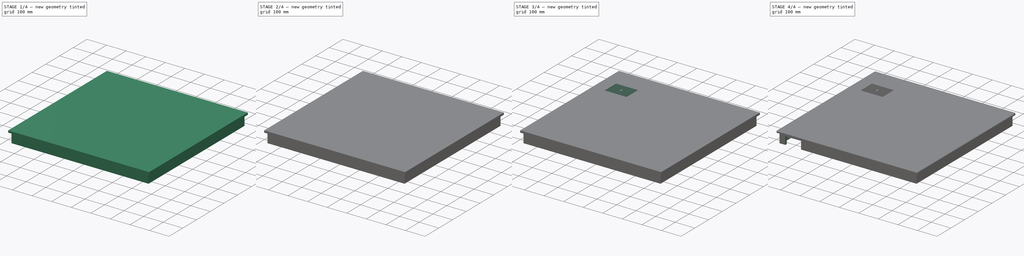
[diagram: build sequence overview — one tinted view per stage of 4, left to right]
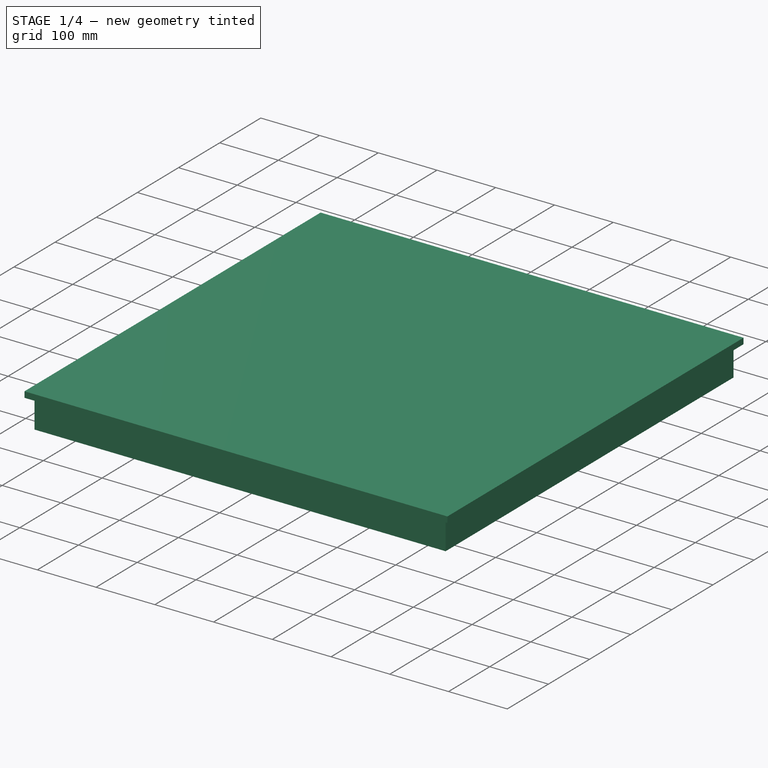
[diagram: stage 1 of 4 — iso view after this stage's code; geometry added in this stage tinted green]
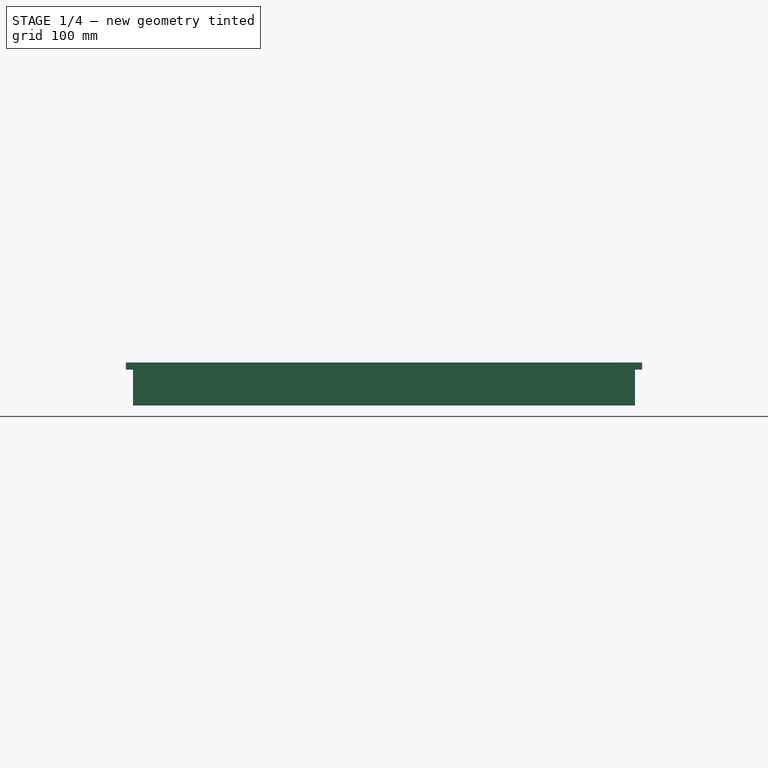
[diagram: stage 1 of 4 — front view after this stage's code; geometry added in this stage tinted green]
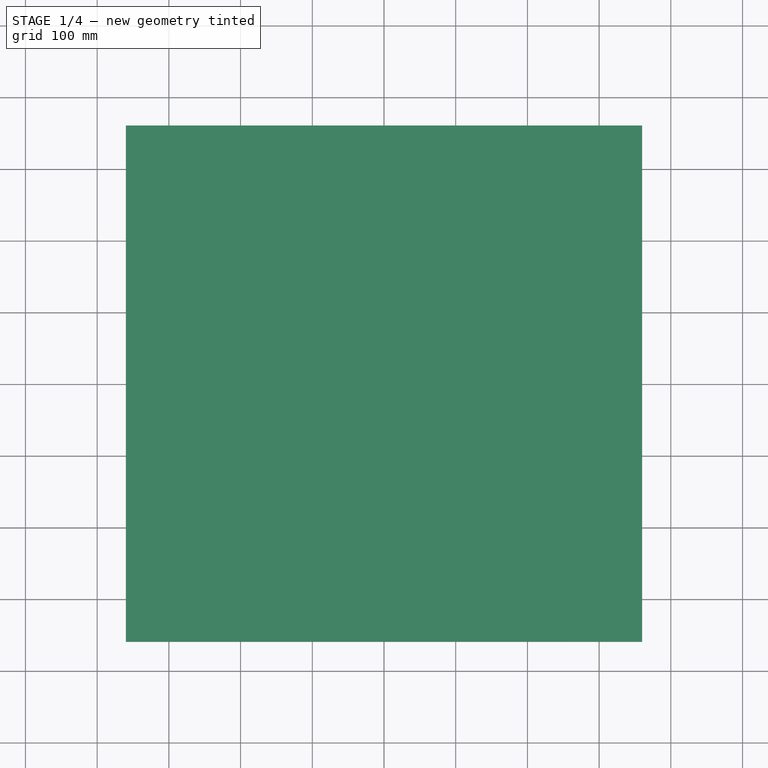
[diagram: stage 1 of 4 — top view after this stage's code; geometry added in this stage tinted green]
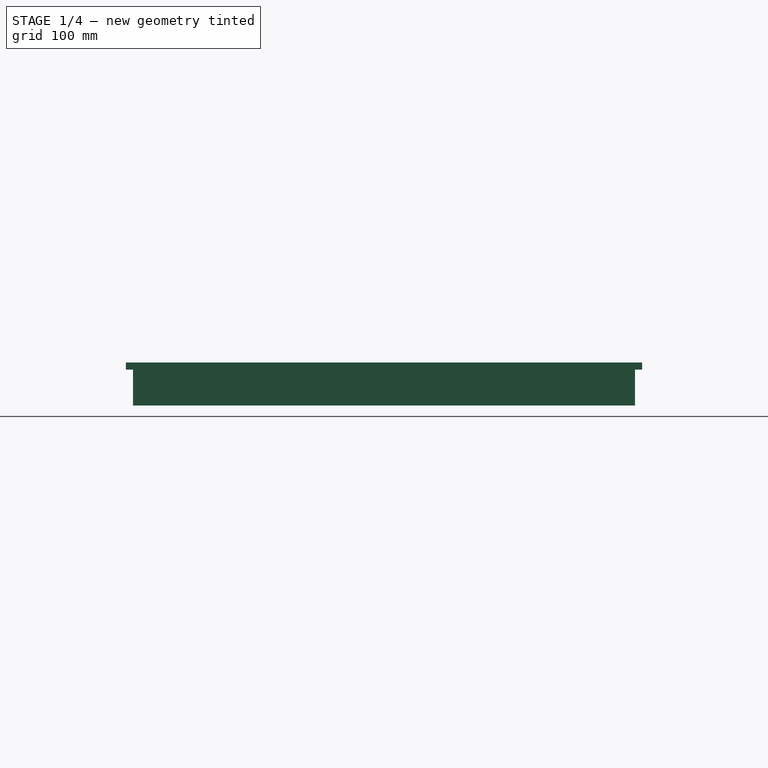
[diagram: stage 1 of 4 — right view after this stage's code; geometry added in this stage tinted green]
FCSTD DOCUMENT  (FreeCAD 0.18R16131 (Git))
Label: Couvercle_tete
License: All rights reserved
LicenseURL: http://en.wikipedia.org/wiki/All_rights_reserved
objects: Sketcher::SketchObject×10, PartDesign::Pad×6, PartDesign::Pocket×4, PartDesign::Fillet×4, PartDesign::Body×1
note: 35 computed .brp shape members not serialized (recipe doc carries the construction recipe); baked Part::Feature solids carry a one-line shape summary decoded from their .brp

FEATURE [Sketcher::SketchObject] Sketch
  MapMode = 5
  Support = -> [XY_Plane]
  sketch-geometry (4):
    g0: LineSegment StartX=-360 StartY=360 StartZ=0 EndX=360 EndY=360 EndZ=0
    g1: LineSegment StartX=360 StartY=360 StartZ=0 EndX=360 EndY=-360 EndZ=0
    g2: LineSegment StartX=360 StartY=-360 StartZ=0 EndX=-360 EndY=-360 EndZ=0
    g3: LineSegment StartX=-360 StartY=-360 StartZ=0 EndX=-360 EndY=360 EndZ=0
  constraints (10):
    c: Coincident(g0,g1)
    c: Coincident(g1,g2)
    c: Coincident(g2,g3)
    c: Coincident(g3,g0)
    c: Horizontal(g0)
    c: Horizontal(g2)
    c: Vertical(g1)
    c: Vertical(g3)
    c: DistanceX(g0,g0) = 720
    c: DistanceY(g1,g1) = 720
FEATURE [PartDesign::Pad] Pad
  Length = 10
  Length2 = 100
  Profile = -> Sketch
  Type = 0
FEATURE [Sketcher::SketchObject] Sketch001
  ExternalGeometry = -> [Pad]
  MapMode = 5
  Placement = pos=(0,0,0) rot=(1,0,0;3.14159rad)
  Support = -> [Pad]
  sketch-geometry (8):
    g0: LineSegment StartX=-350 StartY=350 StartZ=0 EndX=350 EndY=350 EndZ=0
    g1: LineSegment StartX=350 StartY=350 StartZ=0 EndX=350 EndY=-350 EndZ=0
    g2: LineSegment StartX=350 StartY=-350 StartZ=0 EndX=-350 EndY=-350 EndZ=0
    g3: LineSegment StartX=-350 StartY=-350 StartZ=0 EndX=-350 EndY=350 EndZ=0
    g4: LineSegment StartX=-340 StartY=340 StartZ=0 EndX=340 EndY=340 EndZ=0
    g5: LineSegment StartX=340 StartY=340 StartZ=0 EndX=340 EndY=-340 EndZ=0
    g6: LineSegment StartX=340 StartY=-340 StartZ=0 EndX=-340 EndY=-340 EndZ=0
    g7: LineSegment StartX=-340 StartY=-340 StartZ=0 EndX=-340 EndY=340 EndZ=0
  constraints (24):
    c: Coincident(g0,g1)
    c: Coincident(g1,g2)
    c: Coincident(g2,g3)
    c: Coincident(g3,g0)
    c: Horizontal(g0)
    c: Horizontal(g2)
    c: Vertical(g1)
    c: Vertical(g3)
    c: Coincident(g4,g5)
    c: Coincident(g5,g6)
    c: Coincident(g6,g7)
    c: Coincident(g7,g4)
    c: Horizontal(g4)
    c: Horizontal(g6)
    c: Vertical(g5)
    c: Vertical(g7)
    c: DistanceX(g1,g-6) = 10
    c: DistanceY(g-6,g1) = 10
    c: DistanceY(g0,g-4) = 10
    c: DistanceX(g-4,g0) = 10
    c: DistanceY(g4,g0) = 10
    c: DistanceX(g4,g0) = 10
    c: DistanceX(g2,g6) = 10
    c: DistanceY(g2,g6) = 10
FEATURE [PartDesign::Pad] Pad001
  BaseFeature = -> Pad
  Length = 50
  Length2 = 100
  Profile = -> Sketch001
  Type = 0
FEATURE [Sketcher::SketchObject] Sketch002
  ExternalGeometry = -> [Pad001]
  MapMode = 5
  Placement = pos=(0,0,0) rot=(1,0,0;3.14159rad)
  Support = -> [Pad001]
  sketch-geometry (16):
    g0: LineSegment StartX=259 StartY=-265 StartZ=0 EndX=305 EndY=-265 EndZ=0
    g1: LineSegment StartX=305 StartY=-265 StartZ=0 EndX=305 EndY=-305 EndZ=0
    g2: LineSegment StartX=305 StartY=-305 StartZ=0 EndX=259 EndY=-305 EndZ=0
    g3: LineSegment StartX=259 StartY=-305 StartZ=0 EndX=259 EndY=-265 EndZ=0
    g4: LineSegment StartX=208 StartY=-265 StartZ=0 EndX=254 EndY=-265 EndZ=0
    g5: LineSegment StartX=254 StartY=-265 StartZ=0 EndX=254 EndY=-305 EndZ=0
    g6: LineSegment StartX=254 StartY=-305 StartZ=0 EndX=208 EndY=-305 EndZ=0
    g7: LineSegment StartX=208 StartY=-305 StartZ=0 EndX=208 EndY=-265 EndZ=0
    g8: LineSegment StartX=259 StartY=16 StartZ=0 EndX=305 EndY=16 EndZ=0
    g9: LineSegment StartX=305 StartY=16 StartZ=0 EndX=305 EndY=-184 EndZ=0
    g10: LineSegment StartX=305 StartY=-184 StartZ=0 EndX=259 EndY=-184 EndZ=0
    g11: LineSegment StartX=259 StartY=-184 StartZ=0 EndX=259 EndY=16 EndZ=0
    g12: LineSegment StartX=208 StartY=16 StartZ=0 EndX=254 EndY=16 EndZ=0
    g13: LineSegment StartX=254 StartY=16 StartZ=0 EndX=254 EndY=-184 EndZ=0
    g14: LineSegment StartX=254 StartY=-184 StartZ=0 EndX=208 EndY=-184 EndZ=0
    g15: LineSegment StartX=208 StartY=-184 StartZ=0 EndX=208 EndY=16 EndZ=0
  constraints (48):
    c: Coincident(g0,g1)
    c: Coincident(g1,g2)
    c: Coincident(g2,g3)
    c: Coincident(g3,g0)
    c: Horizontal(g0)
    c: Horizontal(g2)
    c: Vertical(g1)
    c: Vertical(g3)
    c: Coincident(g4,g5)
    c: Coincident(g5,g6)
    c: Coincident(g6,g7)
    c: Coincident(g7,g4)
    c: Horizontal(g4)
    c: Horizontal(g6)
    c: Vertical(g5)
    c: Vertical(g7)
    c: Coincident(g8,g9)
    c: Coincident(g9,g10)
    c: Coincident(g10,g11)
    c: Coincident(g11,g8)
    c: Horizontal(g8)
    c: Horizontal(g10)
    c: Vertical(g9)
    c: Vertical(g11)
    c: Coincident(g12,g13)
    c: Coincident(g13,g14)
    c: Coincident(g14,g15)
    c: Coincident(g15,g12)
    c: Horizontal(g12)
    c: Horizontal(g14)
    c: Vertical(g13)
    c: Vertical(g15)
    c: DistanceX(g0,g0) = 46
    c: DistanceY(g1,g1) = 40
    c: Equal(g0,g4)
    c: Equal(g1,g5)
    c: Equal(g2,g8)
    c: Equal(g6,g12)
    c: DistanceY(g9,g9) = 200
    c: Equal(g11,g13)
    c: DistanceY(g10,g13) = 0
    c: DistanceX(g5,g2) = 5
    c: DistanceX(g12,g8) = 5
    c: DistanceY(g4,g14) = 81
    c: DistanceY(g0,g9) = 81
    c: DistanceX(g4,g13) = 0
    c: DistanceX(g1,g-5) = 45
    c: DistanceY(g-5,g1) = 45
FEATURE [PartDesign::Pad] Pad002
  BaseFeature = -> Pad001
  Length = 10
  Length2 = 100
  Profile = -> Sketch002
  Type = 0
FEATURE [Sketcher::SketchObject] Sketch003
  ExternalGeometry = -> [Pad002]
  MapMode = 5
  Placement = pos=(0,0,0) rot=(1,0,0;3.14159rad)
  Support = -> [Pad002]
  sketch-geometry (8):
    g0: LineSegment StartX=208 StartY=-194 StartZ=0 EndX=254 EndY=-194 EndZ=0
    g1: LineSegment StartX=254 StartY=-194 StartZ=0 EndX=254 EndY=-255 EndZ=0
    g2: LineSegment StartX=254 StartY=-255 StartZ=0 EndX=208 EndY=-255 EndZ=0
    g3: LineSegment StartX=208 StartY=-255 StartZ=0 EndX=208 EndY=-194 EndZ=0
    g4: LineSegment StartX=259 StartY=-194 StartZ=0 EndX=305 EndY=-194 EndZ=0
    g5: LineSegment StartX=305 StartY=-194 StartZ=0 EndX=305 EndY=-255 EndZ=0
    g6: LineSegment StartX=305 StartY=-255 StartZ=0 EndX=259 EndY=-255 EndZ=0
    g7: LineSegment StartX=259 StartY=-255 StartZ=0 EndX=259 EndY=-194 EndZ=0
  constraints (24):
    c: Coincident(g0,g1)
    c: Coincident(g1,g2)
    c: Coincident(g2,g3)
    c: Coincident(g3,g0)
    c: Horizontal(g0)
    c: Horizontal(g2)
    c: Vertical(g1)
    c: Vertical(g3)
    c: Coincident(g4,g5)
    c: Coincident(g5,g6)
    c: Coincident(g6,g7)
    c: Coincident(g7,g4)
    c: Horizontal(g4)
    c: Horizontal(g6)
    c: Vertical(g5)
    c: Vertical(g7)
    c: DistanceX(g4,g4) = 46
    c: DistanceX(g0,g0) = 46
    c: DistanceX(g0,g4) = 5
    c: DistanceX(g0,g-3) = 0
    c: DistanceY(g7,g7) = 61
    c: DistanceY(g1,g1) = 61
    c: DistanceY(g4,g-3) = 10
    c: DistanceY(g0,g-3) = 10
FEATURE [PartDesign::Pad] Pad003
  BaseFeature = -> Pad002
  Length = 5
  Length2 = 100
  Profile = -> Sketch003
  Type = 0
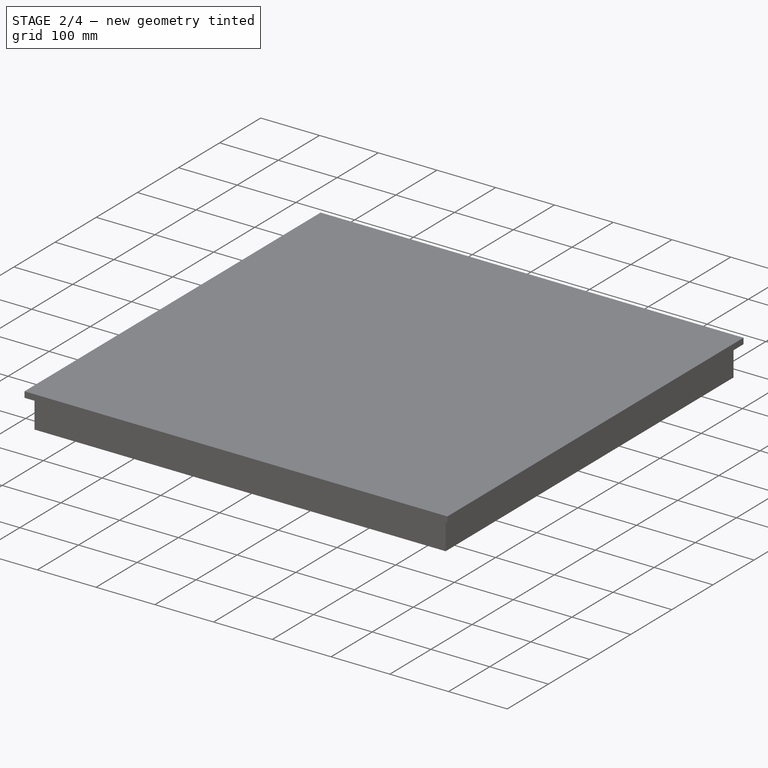
[diagram: stage 2 of 4 — iso view after this stage's code; geometry added in this stage tinted green]
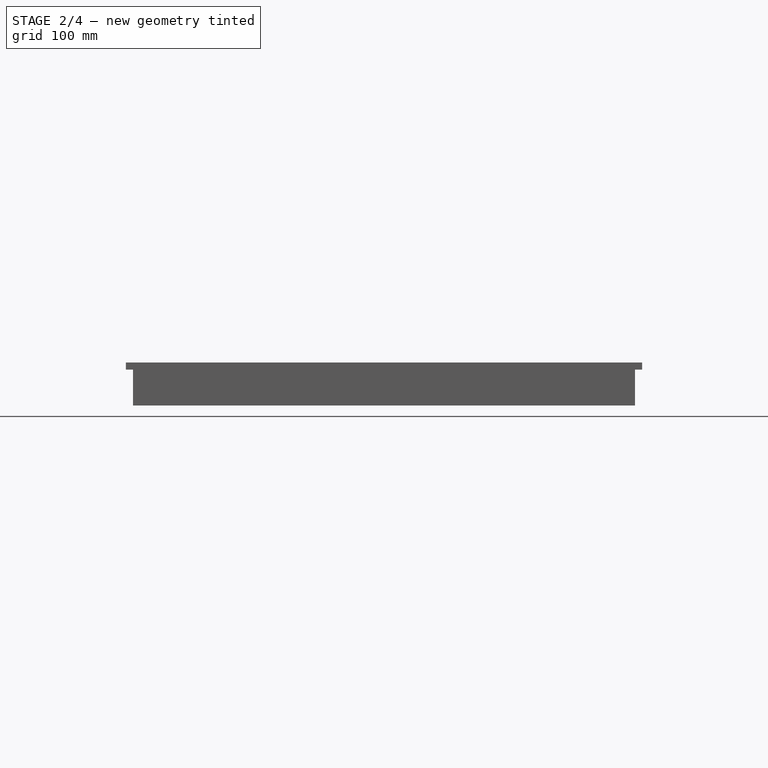
[diagram: stage 2 of 4 — front view after this stage's code; geometry added in this stage tinted green]
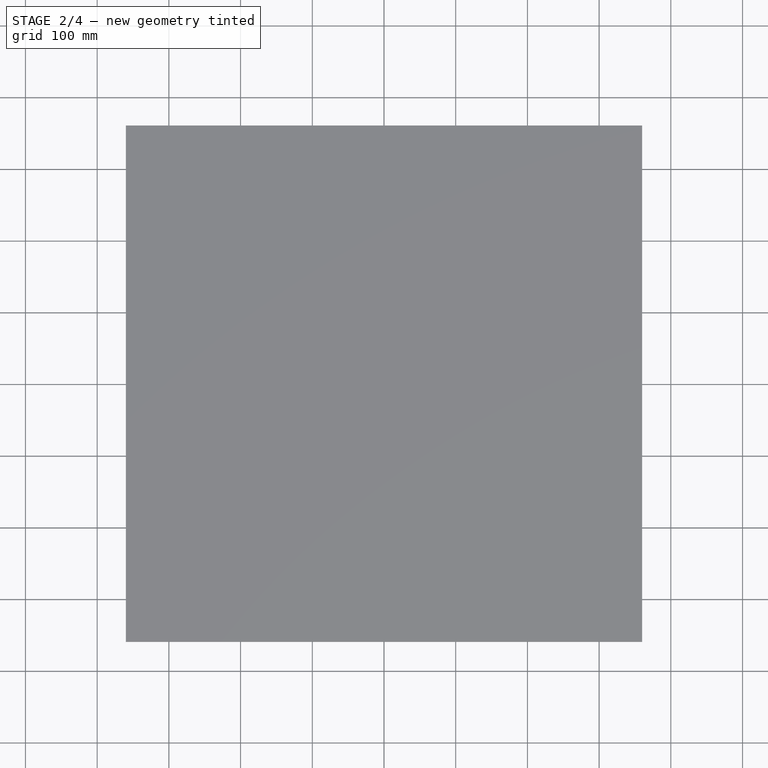
[diagram: stage 2 of 4 — top view after this stage's code; geometry added in this stage tinted green]
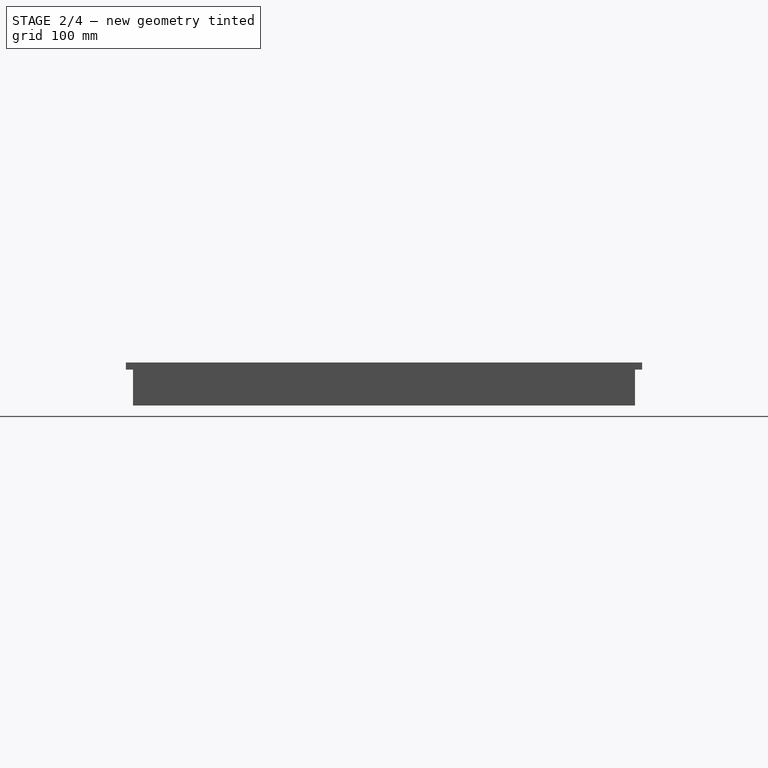
[diagram: stage 2 of 4 — right view after this stage's code; geometry added in this stage tinted green]
FEATURE [Sketcher::SketchObject] Sketch004
  ExternalGeometry = -> [Pad003]
  MapMode = 5
  Placement = pos=(0,0,0) rot=(1,0,0;3.14159rad)
  Support = -> [Pad003]
  sketch-geometry (4):
    g0: LineSegment StartX=-240 StartY=240 StartZ=0 EndX=-108 EndY=240 EndZ=0
    g1: LineSegment StartX=-108 StartY=240 StartZ=0 EndX=-108 EndY=179 EndZ=0
    g2: LineSegment StartX=-108 StartY=179 StartZ=0 EndX=-240 EndY=179 EndZ=0
    g3: LineSegment StartX=-240 StartY=179 StartZ=0 EndX=-240 EndY=240 EndZ=0
  constraints (12):
    c: Coincident(g0,g1)
    c: Coincident(g1,g2)
    c: Coincident(g2,g3)
    c: Coincident(g3,g0)
    c: Horizontal(g0)
    c: Horizontal(g2)
    c: Vertical(g1)
    c: Vertical(g3)
    c: DistanceX(g-4,g0) = 110
    c: DistanceY(g0,g-4) = 110
    c: DistanceX(g0,g0) = 132
    c: DistanceY(g1,g1) = 61
FEATURE [PartDesign::Pad] Pad004
  BaseFeature = -> Pad003
  Length = 46
  Length2 = 100
  Profile = -> Sketch004
  Type = 0
FEATURE [Sketcher::SketchObject] Sketch005
  ExternalGeometry = -> [Pad004]
  MapMode = 5
  Placement = pos=(0,-179,0) rot=(0,0.707107,0.707107;3.14159rad)
  Support = -> [Pad004]
  sketch-geometry (4):
    g0: LineSegment StartX=108 StartY=-46 StartZ=0 EndX=240 EndY=-46 EndZ=0
    g1: LineSegment StartX=240 StartY=-46 StartZ=0 EndX=179 EndY=0 EndZ=0
    g2: LineSegment StartX=179 StartY=0 StartZ=0 EndX=169 EndY=0 EndZ=0
    g3: LineSegment StartX=169 StartY=0 StartZ=0 EndX=108 EndY=-46 EndZ=0
  constraints (10):
    c: Coincident(g0,g1)
    c: Coincident(g1,g2)
    c: Coincident(g2,g3)
    c: Coincident(g3,g0)
    c: DistanceX(g1,g-6) = 61
    c: DistanceX(g-5,g2) = 61
    c: Coincident(g0,g-5)
    c: Coincident(g0,g-6)
    c: PointOnObject(g2,g-4)
    c: PointOnObject(g1,g-4)
FEATURE [PartDesign::Pocket] Pocket
  BaseFeature = -> Pad004
  Length = 61
  Length2 = 100
  Profile = -> Sketch005
  Type = 0
FEATURE [Sketcher::SketchObject] Sketch006
  ExternalGeometry = -> [Pocket]
  MapMode = 5
  Placement = pos=(0,0,0) rot=(1,0,0;3.14159rad)
  Support = -> [Pocket]
  sketch-geometry (7):
    g0: LineSegment [constr] StartX=-300 StartY=-167 StartZ=0 EndX=-183 EndY=-167 EndZ=0
    g1: LineSegment [constr] StartX=-183 StartY=-167 StartZ=0 EndX=-183 EndY=-250 EndZ=0
    g2: LineSegment [constr] StartX=-183 StartY=-250 StartZ=0 EndX=-300 EndY=-250 EndZ=0
    g3: LineSegment [constr] StartX=-300 StartY=-250 StartZ=0 EndX=-300 EndY=-167 EndZ=0
    g4: LineSegment [constr] StartX=-300 StartY=-167 StartZ=0 EndX=-183 EndY=-250 EndZ=0
    g5: LineSegment [constr] StartX=-183 StartY=-167 StartZ=0 EndX=-300 EndY=-250 EndZ=0
    g6: Circle CenterX=-241.5 CenterY=-208.5 CenterZ=0 NormalX=0 NormalY=0 NormalZ=1 AngleXU=0 Radius=2.5
  constraints (19):
    c: Coincident(g0,g1)
    c: Coincident(g1,g2)
    c: Coincident(g2,g3)
    c: Coincident(g3,g0)
    c: Horizontal(g0)
    c: Horizontal(g2)
    c: Vertical(g1)
    c: Vertical(g3)
    c: DistanceY(g-6,g2) = 100
    c: DistanceX(g-6,g2) = 50
    c: DistanceX(g0,g0) = 117
    c: DistanceY(g1,g1) = 83
    c: Coincident(g4,g0)
    c: Coincident(g5,g0)
    c: Coincident(g4,g1)
    c: Coincident(g5,g2)
    c: PointOnObject(g6,g5)
    c: PointOnObject(g6,g4)
    c: Diameter(g6) = 5
FEATURE [PartDesign::Pad] Pad005
  BaseFeature = -> Pocket
  Length = 14
  Length2 = 100
  Profile = -> Sketch006
  Type = 0
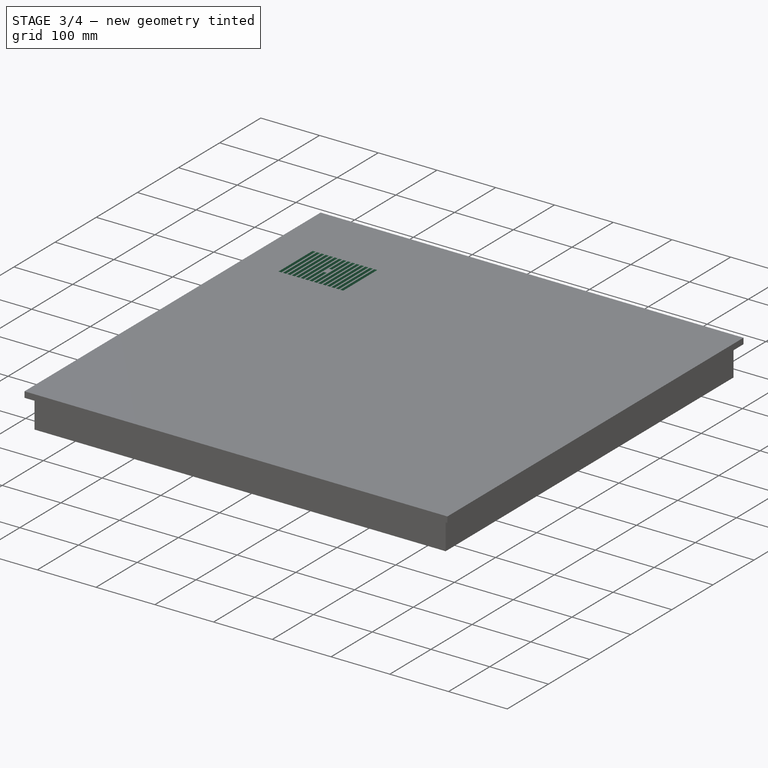
[diagram: stage 3 of 4 — iso view after this stage's code; geometry added in this stage tinted green]
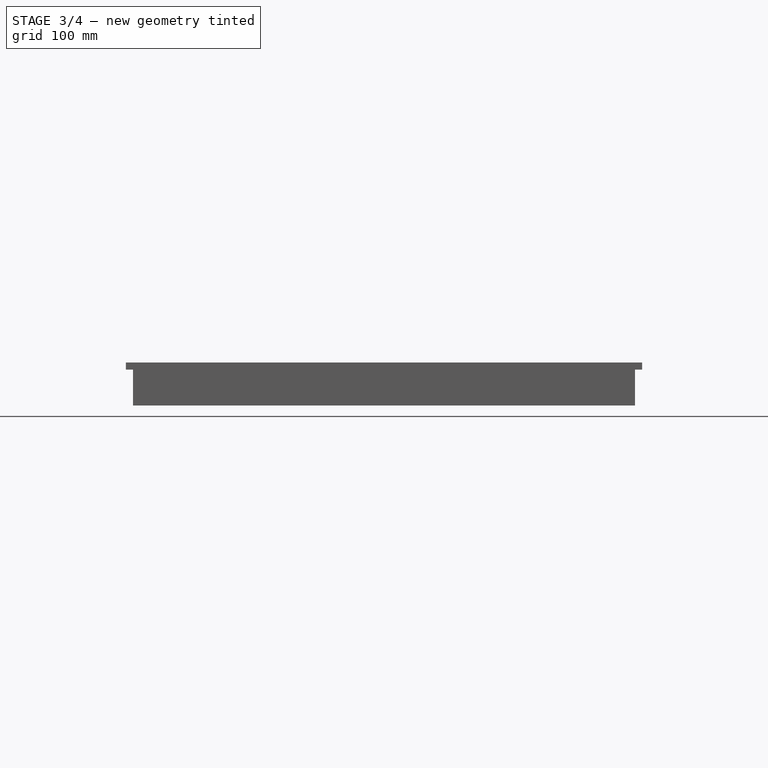
[diagram: stage 3 of 4 — front view after this stage's code; geometry added in this stage tinted green]
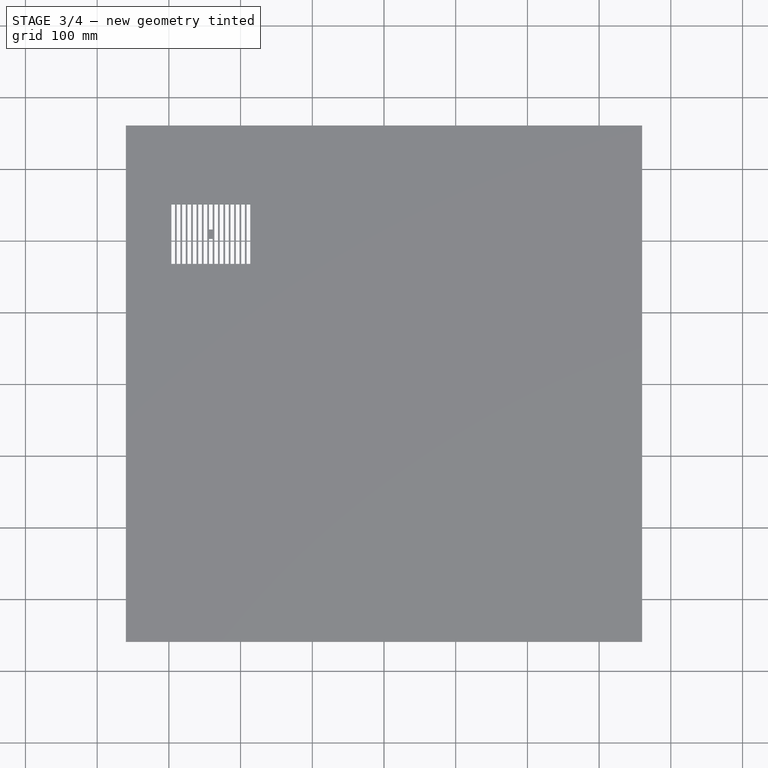
[diagram: stage 3 of 4 — top view after this stage's code; geometry added in this stage tinted green]
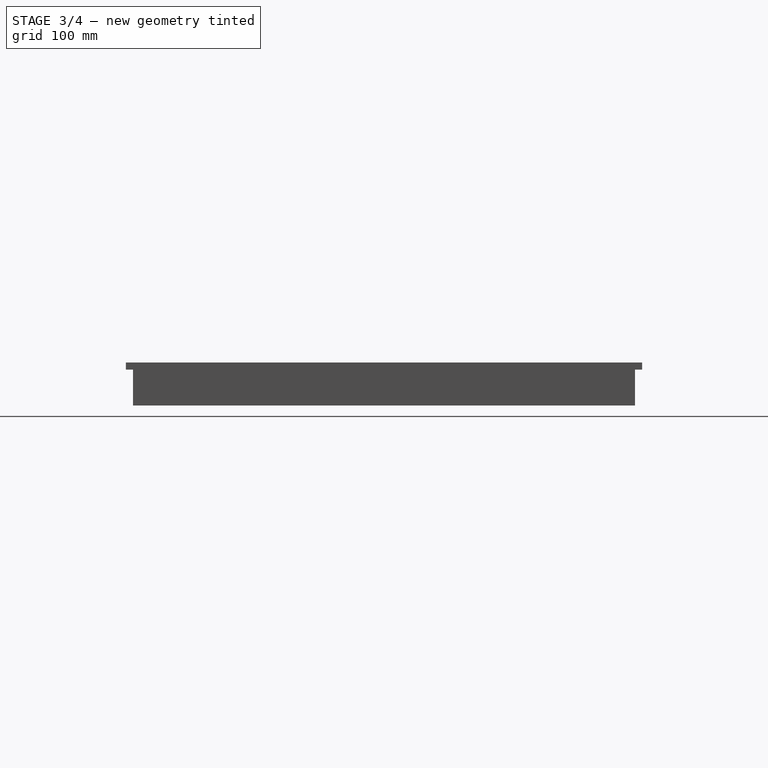
[diagram: stage 3 of 4 — right view after this stage's code; geometry added in this stage tinted green]
FEATURE [Sketcher::SketchObject] Sketch007
  ExternalGeometry = -> [Pad005]
  MapMode = 5
  Placement = pos=(0,340,0) rot=(1,0,0;1.5708rad)
  Support = -> [Pad005]
  sketch-geometry (4):
    g0: ArcOfCircle CenterX=-307.75 CenterY=-25 CenterZ=0 NormalX=0 NormalY=0 NormalZ=1 AngleXU=0 Radius=15 StartAngle=0 EndAngle=3.14159
    g1: LineSegment StartX=-292.75 StartY=-50 StartZ=0 EndX=-292.75 EndY=-25 EndZ=0
    g2: LineSegment StartX=-322.75 StartY=-50 StartZ=0 EndX=-322.75 EndY=-25 EndZ=0
    g3: LineSegment StartX=-322.75 StartY=-50 StartZ=0 EndX=-292.75 EndY=-50 EndZ=0
  constraints (11):
    c: Tangent(g1,g0) = -1.5708
    c: Tangent(g2,g0) = 1.5708
    c: Vertical(g1)
    c: Coincident(g3,g2)
    c: Coincident(g3,g1)
    c: DistanceX(g0,g0) = 30
    c: Vertical(g2)
    c: DistanceY(g0,g-3) = 25
    c: PointOnObject(g2,g-4)
    c: PointOnObject(g1,g-4)
    c: DistanceX(g-3,g0) = 42.25
FEATURE [PartDesign::Pocket] Pocket001
  BaseFeature = -> Pad005
  Length = 10
  Length2 = 100
  Profile = -> Sketch007
  Type = 0
FEATURE [Sketcher::SketchObject] Sketch008
  ExternalGeometry = -> [Pocket001]
  MapMode = 5
  Placement = pos=(0,0,0) rot=(1,0,0;3.14159rad)
  Support = -> [Pocket001]
  sketch-geometry (70):
    g0: LineSegment [constr] StartX=-300 StartY=-167 StartZ=0 EndX=-183 EndY=-167 EndZ=0
    g1: LineSegment [constr] StartX=-183 StartY=-167 StartZ=0 EndX=-183 EndY=-250 EndZ=0
    g2: LineSegment [constr] StartX=-183 StartY=-250 StartZ=0 EndX=-300 EndY=-250 EndZ=0
    g3: LineSegment [constr] StartX=-300 StartY=-250 StartZ=0 EndX=-300 EndY=-167 EndZ=0
    g4: LineSegment StartX=-289 StartY=-167 StartZ=0 EndX=-284 EndY=-167 EndZ=0
    g5: LineSegment StartX=-284 StartY=-167 StartZ=0 EndX=-284 EndY=-250 EndZ=0
    g6: LineSegment StartX=-284 StartY=-250 StartZ=0 EndX=-289 EndY=-250 EndZ=0
    g7: LineSegment StartX=-289 StartY=-250 StartZ=0 EndX=-289 EndY=-167 EndZ=0
    g8: LineSegment StartX=-281.5 StartY=-167 StartZ=0 EndX=-276.5 EndY=-167 EndZ=0
    g9: LineSegment StartX=-276.5 StartY=-167 StartZ=0 EndX=-276.5 EndY=-250 EndZ=0
    g10: LineSegment StartX=-276.5 StartY=-250 StartZ=0 EndX=-281.5 EndY=-250 EndZ=0
    g11: LineSegment StartX=-281.5 StartY=-250 StartZ=0 EndX=-281.5 EndY=-167 EndZ=0
    g12: LineSegment StartX=-274 StartY=-167 StartZ=0 EndX=-269 EndY=-167 EndZ=0
    g13: LineSegment StartX=-269 StartY=-167 StartZ=0 EndX=-269 EndY=-250 EndZ=0
    g14: LineSegment StartX=-269 StartY=-250 StartZ=0 EndX=-274 EndY=-250 EndZ=0
    g15: LineSegment StartX=-274 StartY=-250 StartZ=0 EndX=-274 EndY=-167 EndZ=0
    g16: LineSegment StartX=-266.5 StartY=-167 StartZ=0 EndX=-261.5 EndY=-167 EndZ=0
    g17: LineSegment StartX=-261.5 StartY=-167 StartZ=0 EndX=-261.5 EndY=-250 EndZ=0
    g18: LineSegment StartX=-261.5 StartY=-250 StartZ=0 EndX=-266.5 EndY=-250 EndZ=0
    g19: LineSegment StartX=-266.5 StartY=-250 StartZ=0 EndX=-266.5 EndY=-167 EndZ=0
    g20: LineSegment StartX=-259 StartY=-167 StartZ=0 EndX=-254 EndY=-167 EndZ=0
    g21: LineSegment StartX=-254 StartY=-167 StartZ=0 EndX=-254 EndY=-250 EndZ=0
    g22: LineSegment StartX=-254 StartY=-250 StartZ=0 EndX=-259 EndY=-250 EndZ=0
    g23: LineSegment StartX=-259 StartY=-250 StartZ=0 EndX=-259 EndY=-167 EndZ=0
    g24: LineSegment StartX=-251.5 StartY=-167 StartZ=0 EndX=-246.5 EndY=-167 EndZ=0
    g25: LineSegment StartX=-246.5 StartY=-167 StartZ=0 EndX=-246.5 EndY=-250 EndZ=0
    g26: LineSegment StartX=-246.5 StartY=-250 StartZ=0 EndX=-251.5 EndY=-250 EndZ=0
    g27: LineSegment StartX=-251.5 StartY=-250 StartZ=0 EndX=-251.5 EndY=-167 EndZ=0
    g28: LineSegment StartX=-236.5 StartY=-167 StartZ=0 EndX=-231.5 EndY=-167 EndZ=0
    g29: LineSegment StartX=-231.5 StartY=-167 StartZ=0 EndX=-231.5 EndY=-250 EndZ=0
    g30: LineSegment StartX=-231.5 StartY=-250 StartZ=0 EndX=-236.5 EndY=-250 EndZ=0
    g31: LineSegment StartX=-236.5 StartY=-250 StartZ=0 EndX=-236.5 EndY=-167 EndZ=0
    g32: LineSegment StartX=-229 StartY=-167 StartZ=0 EndX=-224 EndY=-167 EndZ=0
    g33: LineSegment StartX=-224 StartY=-167 StartZ=0 EndX=-224 EndY=-250 EndZ=0
    g34: LineSegment StartX=-224 StartY=-250 StartZ=0 EndX=-229 EndY=-250 EndZ=0
    g35: LineSegment StartX=-229 StartY=-250 StartZ=0 EndX=-229 EndY=-167 EndZ=0
    g36: LineSegment StartX=-244 StartY=-167 StartZ=0 EndX=-239 EndY=-167 EndZ=0
    g37: LineSegment StartX=-239 StartY=-167 StartZ=0 EndX=-239 EndY=-202 EndZ=0
    g38: LineSegment StartX=-239 StartY=-202 StartZ=0 EndX=-244 EndY=-202 EndZ=0
    g39: LineSegment StartX=-244 StartY=-202 StartZ=0 EndX=-244 EndY=-167 EndZ=0
    g40: LineSegment StartX=-244 StartY=-215 StartZ=0 EndX=-239 EndY=-215 EndZ=0
    g41: LineSegment StartX=-239 StartY=-215 StartZ=0 EndX=-239 EndY=-250 EndZ=0
    g42: LineSegment StartX=-239 StartY=-250 StartZ=0 EndX=-244 EndY=-250 EndZ=0
    g43: LineSegment StartX=-244 StartY=-250 StartZ=0 EndX=-244 EndY=-215 EndZ=0
    g44: LineSegment StartX=-221.5 StartY=-167 StartZ=0 EndX=-216.5 EndY=-167 EndZ=0
    g45: LineSegment StartX=-216.5 StartY=-167 StartZ=0 EndX=-216.5 EndY=-250 EndZ=0
    g46: LineSegment StartX=-216.5 StartY=-250 StartZ=0 EndX=-221.5 EndY=-250 EndZ=0
    g47: LineSegment StartX=-221.5 StartY=-250 StartZ=0 EndX=-221.5 EndY=-167 EndZ=0
    g48: LineSegment StartX=-214 StartY=-167 StartZ=0 EndX=-209 EndY=-167 EndZ=0
    g49: LineSegment StartX=-209 StartY=-167 StartZ=0 EndX=-209 EndY=-250 EndZ=0
    g50: LineSegment StartX=-209 StartY=-250 StartZ=0 EndX=-214 EndY=-250 EndZ=0
    g51: LineSegment StartX=-214 StartY=-250 StartZ=0 EndX=-214 EndY=-167 EndZ=0
    g52: LineSegment StartX=-206.5 StartY=-167 StartZ=0 EndX=-201.5 EndY=-167 EndZ=0
    g53: LineSegment StartX=-201.5 StartY=-167 StartZ=0 EndX=-201.5 EndY=-250 EndZ=0
    g54: LineSegment StartX=-201.5 StartY=-250 StartZ=0 EndX=-206.5 EndY=-250 EndZ=0
    g55: LineSegment StartX=-206.5 StartY=-250 StartZ=0 EndX=-206.5 EndY=-167 EndZ=0
    g56: LineSegment StartX=-199 StartY=-167 StartZ=0 EndX=-194 EndY=-167 EndZ=0
    g57: LineSegment StartX=-194 StartY=-167 StartZ=0 EndX=-194 EndY=-250 EndZ=0
    g58: LineSegment StartX=-194 StartY=-250 StartZ=0 EndX=-199 EndY=-250 EndZ=0
    g59: LineSegment StartX=-199 StartY=-250 StartZ=0 EndX=-199 EndY=-167 EndZ=0
    g60: LineSegment [constr] StartX=-183 StartY=-167 StartZ=0 EndX=-300 EndY=-250 EndZ=0
    g61: LineSegment [constr] StartX=-183 StartY=-250 StartZ=0 EndX=-300 EndY=-167 EndZ=0
    g62: LineSegment StartX=-296.5 StartY=-167 StartZ=0 EndX=-291.5 EndY=-167 EndZ=0
    g63: LineSegment StartX=-291.5 StartY=-167 StartZ=0 EndX=-291.5 EndY=-250 EndZ=0
    g64: LineSegment StartX=-291.5 StartY=-250 StartZ=0 EndX=-296.5 EndY=-250 EndZ=0
    g65: LineSegment StartX=-296.5 StartY=-250 StartZ=0 EndX=-296.5 EndY=-167 EndZ=0
    g66: LineSegment StartX=-191.5 StartY=-167 StartZ=0 EndX=-186.5 EndY=-167 EndZ=0
    g67: LineSegment StartX=-186.5 StartY=-167 StartZ=0 EndX=-186.5 EndY=-250 EndZ=0
    g68: LineSegment StartX=-186.5 StartY=-250 StartZ=0 EndX=-191.5 EndY=-250 EndZ=0
    g69: LineSegment StartX=-191.5 StartY=-250 StartZ=0 EndX=-191.5 EndY=-167 EndZ=0
  constraints (208):
    c: Coincident(g0,g1)
    c: Coincident(g1,g2)
    c: Coincident(g2,g3)
    c: Coincident(g3,g0)
    c: Horizontal(g0)
    c: Horizontal(g2)
    c: Vertical(g1)
    c: Vertical(g3)
    c: DistanceY(g-4,g2) = 100
    c: DistanceX(g-4,g2) = 50
    c: DistanceX(g2,g2) = 117
    c: DistanceY(g1,g1) = 83
    c: Coincident(g4,g5)
    c: Coincident(g5,g6)
    c: Coincident(g6,g7)
    c: Coincident(g7,g4)
    c: Horizontal(g4)
    c: Horizontal(g6)
    c: Vertical(g5)
    c: Vertical(g7)
    c: Coincident(g8,g9)
    c: Coincident(g9,g10)
    c: Coincident(g10,g11)
    c: Coincident(g11,g8)
    c: Horizontal(g8)
    c: Horizontal(g10)
    c: Vertical(g9)
    c: Vertical(g11)
    c: Coincident(g12,g13)
    c: Coincident(g13,g14)
    c: Coincident(g14,g15)
    c: Coincident(g15,g12)
    c: Horizontal(g12)
    c: Horizontal(g14)
    c: Vertical(g13)
    c: Vertical(g15)
    c: Coincident(g16,g17)
    c: Coincident(g17,g18)
    c: Coincident(g18,g19)
    c: Coincident(g19,g16)
    c: Horizontal(g16)
    c: Horizontal(g18)
    c: Vertical(g17)
    c: Vertical(g19)
    c: Coincident(g20,g21)
    c: Coincident(g21,g22)
    c: Coincident(g22,g23)
    c: Coincident(g23,g20)
    c: Horizontal(g20)
    c: Horizontal(g22)
    c: Vertical(g21)
    c: Vertical(g23)
    c: Coincident(g24,g25)
    c: Coincident(g25,g26)
    c: Coincident(g26,g27)
    c: Coincident(g27,g24)
    c: Horizontal(g24)
    c: Horizontal(g26)
    c: Vertical(g25)
    c: Vertical(g27)
    c: Coincident(g28,g29)
    c: Coincident(g29,g30)
    c: Coincident(g30,g31)
    c: Coincident(g31,g28)
    c: Horizontal(g28)
    c: Horizontal(g30)
    c: Vertical(g29)
    c: Vertical(g31)
    c: Coincident(g32,g33)
    c: Coincident(g33,g34)
    c: Coincident(g34,g35)
    c: Coincident(g35,g32)
    c: Horizontal(g32)
    c: Horizontal(g34)
    c: Vertical(g33)
    c: Vertical(g35)
    c: Coincident(g36,g37)
    c: Coincident(g37,g38)
    c: Coincident(g38,g39)
    c: Coincident(g39,g36)
    c: Horizontal(g36)
    c: Horizontal(g38)
    c: Vertical(g37)
    c: Vertical(g39)
    c: Coincident(g40,g41)
    c: Coincident(g41,g42)
    c: Coincident(g42,g43)
    c: Coincident(g43,g40)
    c: Horizontal(g40)
    c: Horizontal(g42)
    c: Vertical(g41)
    c: Vertical(g43)
    c: DistanceX(g4,g4) = 5
    c: Equal(g4,g8)
    c: Equal(g4,g12)
    c: Equal(g4,g16)
    c: Equal(g4,g36)
    c: Equal(g4,g20)
    c: Equal(g4,g24)
    c: Equal(g4,g28)
    c: Equal(g4,g32)
    c: Equal(g4,g40)
    c: Coincident(g44,g45)
    c: Coincident(g45,g46)
    c: Coincident(g46,g47)
    c: Coincident(g47,g44)
    c: Horizontal(g44)
    c: Horizontal(g46)
    c: Vertical(g45)
    c: Vertical(g47)
    c: Coincident(g48,g49)
    c: Coincident(g49,g50)
    c: Coincident(g50,g51)
    c: Coincident(g51,g48)
    c: Horizontal(g48)
    c: Horizontal(g50)
    c: Vertical(g49)
    c: Vertical(g51)
    c: Coincident(g52,g53)
    c: Coincident(g53,g54)
    c: Coincident(g54,g55)
    c: Coincident(g55,g52)
    c: Horizontal(g52)
    c: Horizontal(g54)
    c: Vertical(g53)
    c: Vertical(g55)
    c: Coincident(g56,g57)
    c: Coincident(g57,g58)
    c: Coincident(g58,g59)
    c: Coincident(g59,g56)
    c: Horizontal(g56)
    c: Horizontal(g58)
    c: Vertical(g57)
    c: Vertical(g59)
    c: Equal(g4,g44)
    c: Equal(g4,g48)
    c: Equal(g4,g52)
    c: Equal(g4,g56)
    c: DistanceY(g7,g7) = 83
    c: Equal(g7,g11)
    c: Equal(g7,g15)
    c: Equal(g7,g19)
    c: Equal(g7,g23)
    c: Equal(g7,g27)
    c: Equal(g7,g31)
    c: Equal(g7,g35)
    c: Equal(g7,g47)
    c: Equal(g7,g51)
    c: Equal(g7,g55)
    c: Equal(g7,g59)
    c: PointOnObject(g4,g0)
    c: PointOnObject(g8,g0)
    c: PointOnObject(g12,g0)
    c: PointOnObject(g16,g0)
    c: PointOnObject(g20,g0)
    c: PointOnObject(g24,g0)
    c: PointOnObject(g36,g0)
    c: PointOnObject(g28,g0)
    c: PointOnObject(g32,g0)
    c: PointOnObject(g44,g0)
    c: PointOnObject(g48,g0)
    c: PointOnObject(g52,g0)
    c: PointOnObject(g56,g0)
    c: DistanceY(g43,g43) = 35
    c: Equal(g43,g39)
    c: PointOnObject(g41,g2)
    c: Coincident(g0,g61)
    c: Coincident(g1,g61)
    c: Coincident(g0,g60)
    c: Coincident(g60,g2)
    c: DistanceX(g2,g42) = 56
    c: DistanceX(g0,g36) = 56
    c: DistanceX(g24,g36) = 2.5
    c: DistanceX(g20,g24) = 2.5
    c: DistanceX(g16,g20) = 2.5
    c: DistanceX(g12,g16) = 2.5
    c: DistanceX(g8,g12) = 2.5
    c: DistanceX(g4,g8) = 2.5
    c: DistanceX(g36,g28) = 2.5
    c: DistanceX(g28,g32) = 2.5
    c: DistanceX(g32,g44) = 2.5
    c: DistanceX(g44,g48) = 2.5
    c: DistanceX(g48,g52) = 2.5
    c: DistanceX(g52,g56) = 2.5
    c: Coincident(g62,g63)
    c: Coincident(g63,g64)
    c: Coincident(g64,g65)
    c: Coincident(g65,g62)
    c: Horizontal(g62)
    c: Horizontal(g64)
    c: Vertical(g63)
    c: Vertical(g65)
    c: Coincident(g66,g67)
    c: Coincident(g67,g68)
    c: Coincident(g68,g69)
    c: Coincident(g69,g66)
    c: Horizontal(g66)
    c: Horizontal(g68)
    c: Vertical(g67)
    c: Vertical(g69)
    c: Equal(g4,g62)
    c: Equal(g7,g63)
    c: Equal(g69,g57)
    c: Equal(g66,g56)
    c: PointOnObject(g62,g0)
    c: PointOnObject(g66,g0)
    c: DistanceX(g56,g66) = 2.5
    c: DistanceX(g62,g4) = 2.5
FEATURE [PartDesign::Pocket] Pocket002
  BaseFeature = -> Pocket001
  Length = 10
  Length2 = 100
  Profile = -> Sketch008
  Type = 0
FEATURE [PartDesign::Fillet] Fillet
  Base = -> Pocket002 [Edge231,Edge86,Edge229,Edge232,Edge87,Edge85]
  BaseFeature = -> Pocket002
  Radius = 3
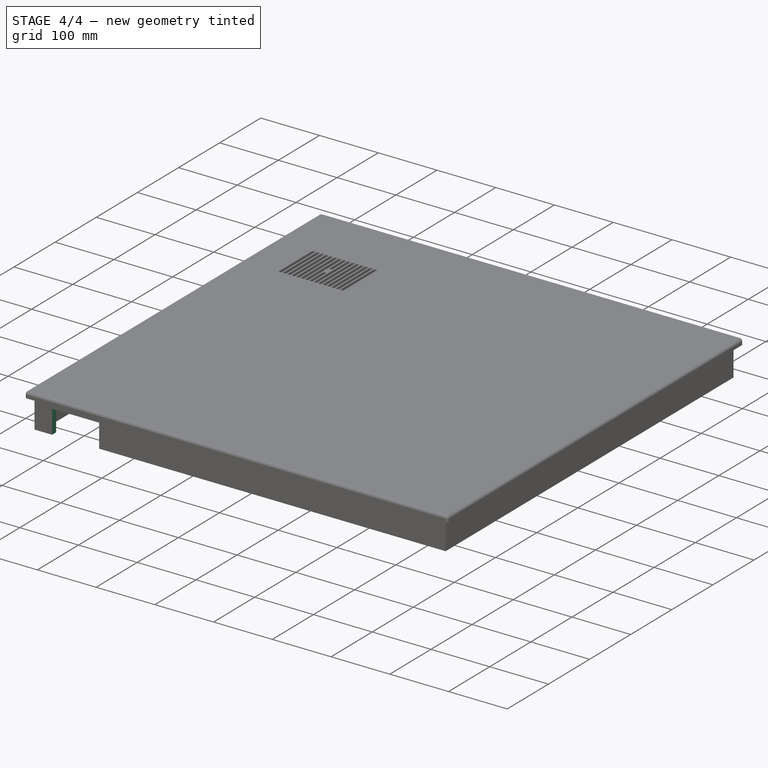
[diagram: stage 4 of 4 — iso view after this stage's code; geometry added in this stage tinted green]
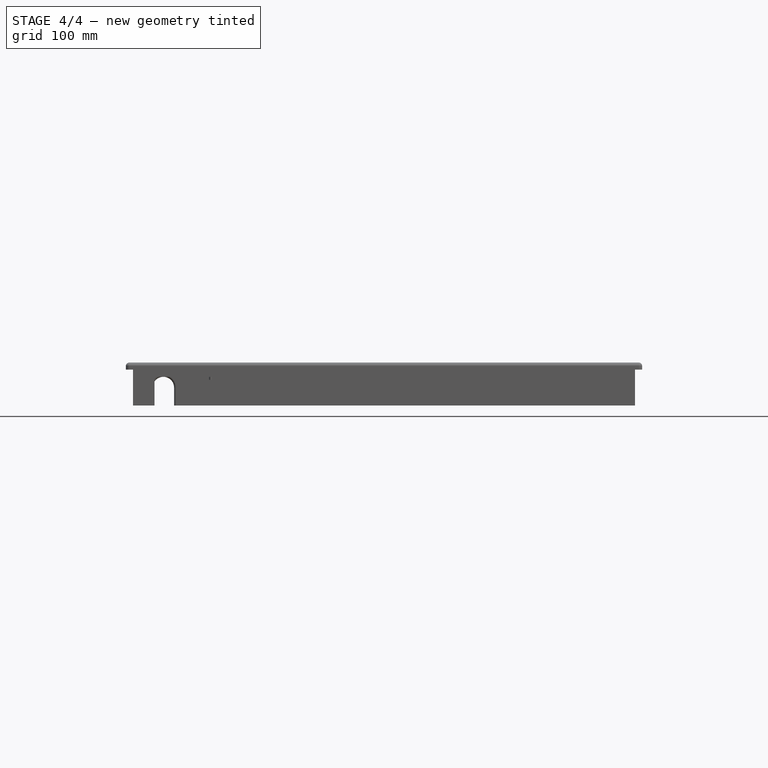
[diagram: stage 4 of 4 — front view after this stage's code; geometry added in this stage tinted green]
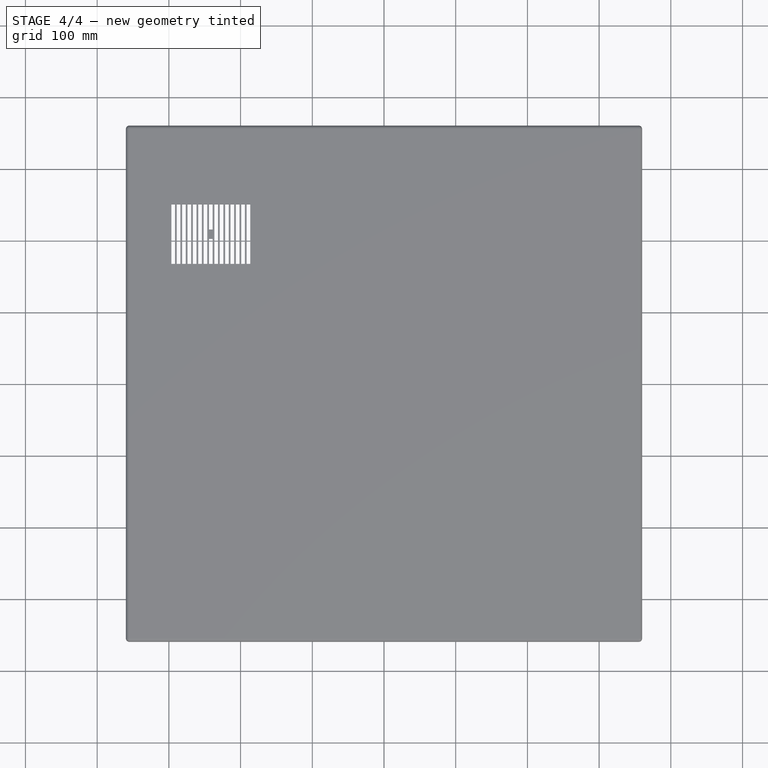
[diagram: stage 4 of 4 — top view after this stage's code; geometry added in this stage tinted green]
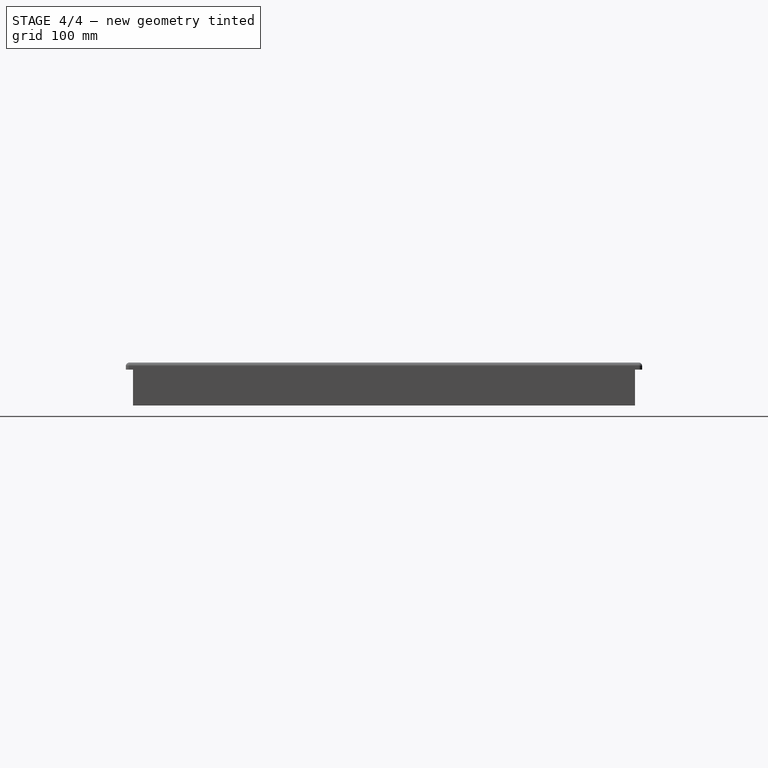
[diagram: stage 4 of 4 — right view after this stage's code; geometry added in this stage tinted green]
FEATURE [PartDesign::Fillet] Fillet001
  Base = -> Fillet [Edge316,Edge318,Edge320,Edge321,Edge284,Edge286,Edge288,Edge289,Edge297,Edge294,Edge292,Edge296,Edge329,Edge326,Edge324,Edge328,Edge308,Edge310,Edge313,Edge312,Edge300,Edge304,Edge305,Edge302]
  BaseFeature = -> Fillet
  Radius = 3
FEATURE [PartDesign::Fillet] Fillet002
  Base = -> Fillet001 [Edge303,Edge304,Edge307,Edge309,Edge302,Edge311]
  BaseFeature = -> Fillet001
  Radius = 1
FEATURE [PartDesign::Fillet] Fillet003
  Base = -> Fillet002 [Edge343,Edge345,Edge415,Edge412,Edge342,Edge413,Edge344,Edge417]
  BaseFeature = -> Fillet002
  Radius = 5
FEATURE [Sketcher::SketchObject] Sketch009
  ExternalGeometry = -> [Fillet003]
  MapMode = 5
  Placement = pos=(0,-350,0) rot=(1,0,0;1.5708rad)
  Support = -> [Fillet003]
  sketch-geometry (4):
    g0: LineSegment StartX=-320 StartY=-10 StartZ=0 EndX=-240 EndY=-10 EndZ=0
    g1: LineSegment StartX=-240 StartY=-10 StartZ=0 EndX=-240 EndY=-50 EndZ=0
    g2: LineSegment StartX=-240 StartY=-50 StartZ=0 EndX=-320 EndY=-50 EndZ=0
    g3: LineSegment StartX=-320 StartY=-50 StartZ=0 EndX=-320 EndY=-10 EndZ=0
  constraints (12):
    c: Coincident(g0,g1)
    c: Coincident(g1,g2)
    c: Coincident(g2,g3)
    c: Coincident(g3,g0)
    c: Horizontal(g0)
    c: Horizontal(g2)
    c: Vertical(g1)
    c: Vertical(g3)
    c: DistanceX(g-3,g0) = 30
    c: DistanceX(g0,g0) = 80
    c: DistanceY(g1,g1) = 40
    c: DistanceY(g0,g-3) = 10
FEATURE [PartDesign::Pocket] Pocket003
  BaseFeature = -> Fillet003
  Length = 10
  Length2 = 100
  Profile = -> Sketch009
  Type = 0
FEATURE [PartDesign::Body] Body
  Group = -> [Sketch,Pad,Sketch001,Pad001,Sketch002,Pad002,Sketch003,Pad003,Sketch004,Pad004,Sketch005,Pocket,Sketch006,Pad005,Sketch007,Pocket001,Sketch008,Pocket002,Fillet,Fillet001,Fillet002,Fillet003,Sketch009,Pocket003]
  Origin = -> Origin
  Tip = -> Pocket003
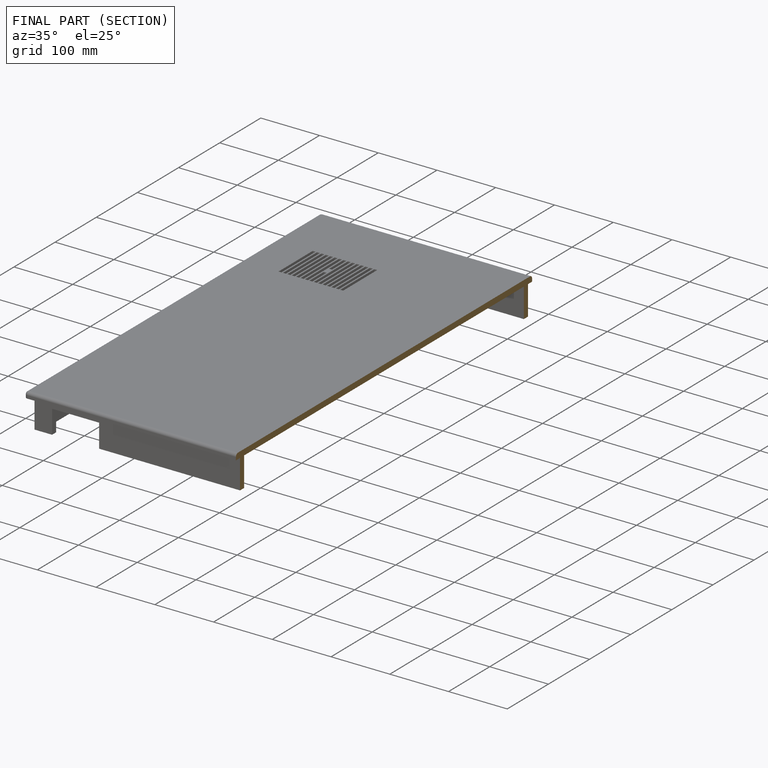
[diagram: finished part — half-section view (interior)]
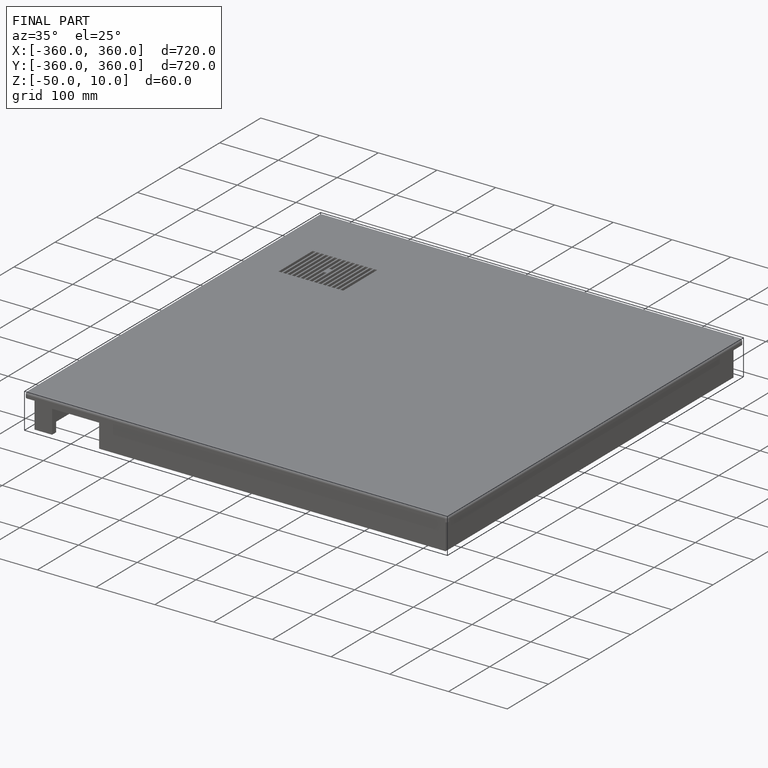
[diagram: finished part — iso view with bounding-box wireframe]
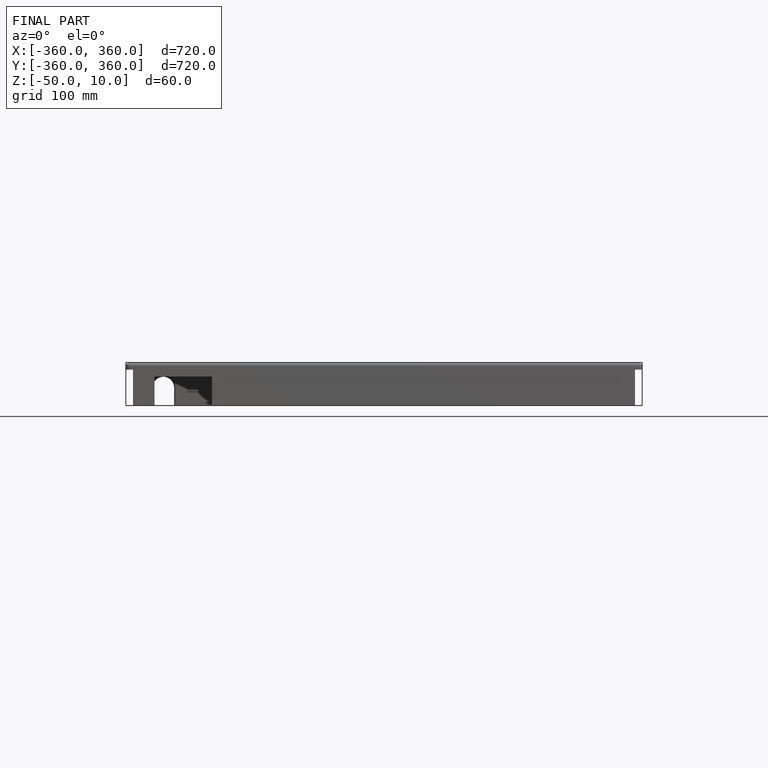
[diagram: finished part — front view with bounding-box wireframe]
